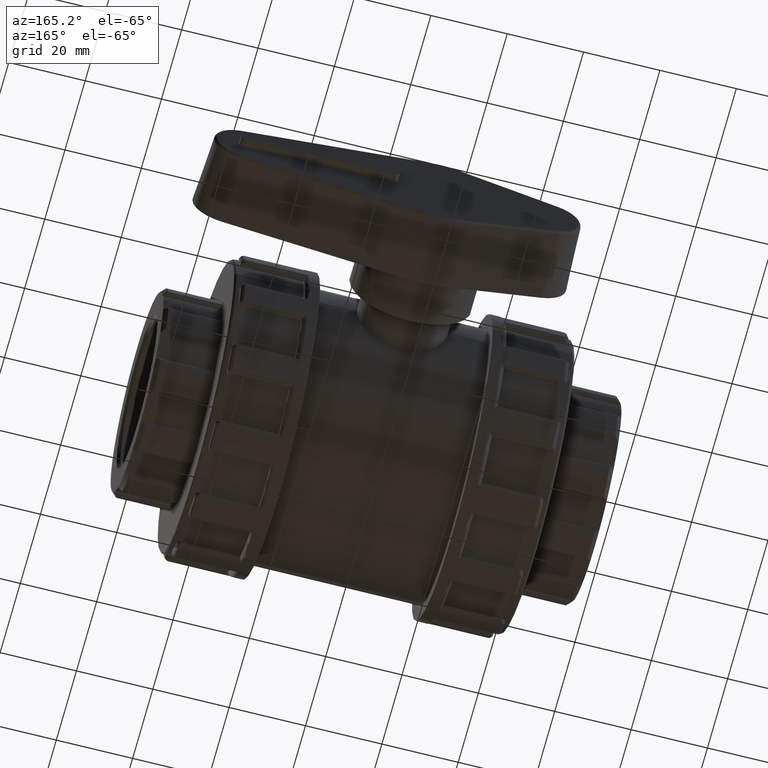
[diagram: clean part render]
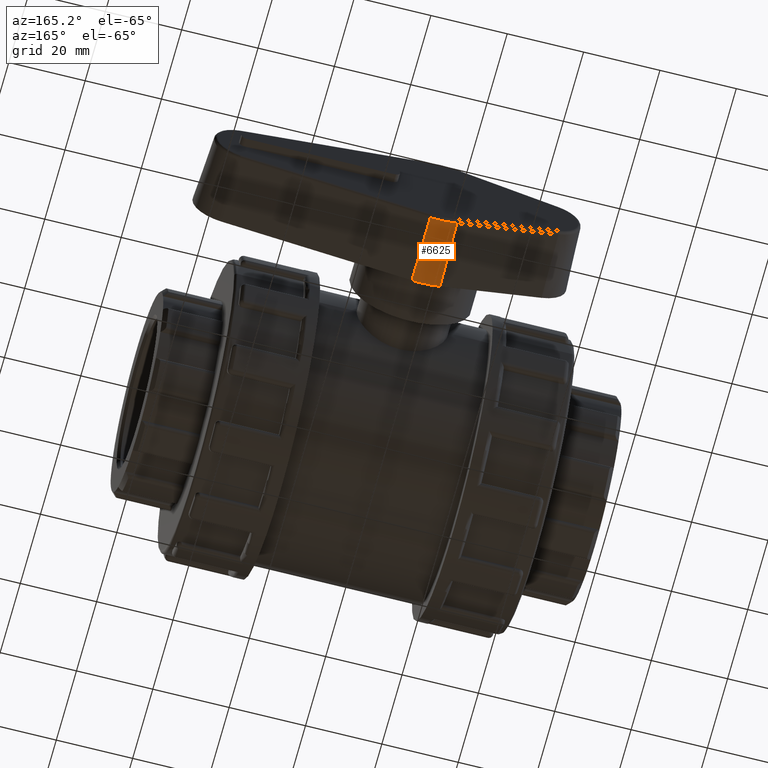
[diagram: same view with one face highlighted and labeled with its STEP entity id]
A machine part, auxiliary view. The second image highlights one B-rep face of the part: STEP entity #6625.
In plain terms, the highlighted conical surface has half-angle 3 deg.
Its self-contained STEP definition (entity closure, byte-faithful):
#340=CONICAL_SURFACE('',#7077,16.,3.);
#428=FACE_OUTER_BOUND('',#862,.T.);
#862=EDGE_LOOP('',(#4353,#4354,#4355,#4356));
#1322=LINE('',#10361,#1718);
#1323=LINE('',#10364,#1719);
#1718=VECTOR('',#8066,17.786107044908);
#1719=VECTOR('',#8069,17.786107044908);
#2114=CIRCLE('',#7065,16.0386909967017);
#2122=CIRCLE('',#7078,16.9695439167363);
#2631=VERTEX_POINT('',#10327);
#2633=VERTEX_POINT('',#10333);
#2641=VERTEX_POINT('',#10360);
#2642=VERTEX_POINT('',#10362);
#3281=EDGE_CURVE('',#2631,#2633,#2114,.T.);
#3293=EDGE_CURVE('',#2631,#2641,#1322,.T.);
#3294=EDGE_CURVE('',#2641,#2642,#2122,.T.);
#3295=EDGE_CURVE('',#2633,#2642,#1323,.T.);
#4353=ORIENTED_EDGE('',*,*,#3281,.F.);
#4354=ORIENTED_EDGE('',*,*,#3293,.T.);
#4355=ORIENTED_EDGE('',*,*,#3294,.T.);
#4356=ORIENTED_EDGE('',*,*,#3295,.F.);
#6625=ADVANCED_FACE('',(#428),#340,.T.);
#7065=AXIS2_PLACEMENT_3D('',#10337,#8036,#8037);
#7077=AXIS2_PLACEMENT_3D('',#10359,#8064,#8065);
#7078=AXIS2_PLACEMENT_3D('',#10363,#8067,#8068);
#8036=DIRECTION('center_axis',(-5.52698279505752E-16,1.,3.44741699507052E-17));
#8037=DIRECTION('ref_axis',(-0.0622533206102689,0.,-0.998060380975517));
#8064=DIRECTION('center_axis',(3.3006630461829E-16,-1.,0.));
#8065=DIRECTION('ref_axis',(1.,3.33066907387547E-16,0.));
#8066=DIRECTION('',(0.00817749316296033,-0.998629534754574,-0.0516931419187602));
#8067=DIRECTION('center_axis',(-3.33066907387547E-16,1.,0.));
#8068=DIRECTION('ref_axis',(1.,3.33066907387547E-16,0.));
#8069=DIRECTION('',(-0.0145377656230396,-0.998629534754574,-0.0502762934846324));
#10327=CARTESIAN_POINT('',(2.50604546823463,73.2617318033515,-15.8416964053355));
#10333=CARTESIAN_POINT('',(-4.45519194352824,73.2617318033515,-15.4074940737941));
#10337=CARTESIAN_POINT('Origin',(-1.04777297948999E-14,73.2617318033515,
1.11022302462516E-15));
#10359=CARTESIAN_POINT('Origin',(-9.99200722162641E-15,74.,0.));
#10360=CARTESIAN_POINT('',(2.65149123699004,55.5,-16.7611161609902));
#10361=CARTESIAN_POINT('',(2.5,74.,-15.8034806292791));
#10362=CARTESIAN_POINT('',(-4.71376219909341,55.5,-16.301713611533));
#10363=CARTESIAN_POINT('Origin',(-3.88578058618805E-15,55.5,0.));
#10364=CARTESIAN_POINT('',(-4.44444444444445,74.,-15.3703257473694));